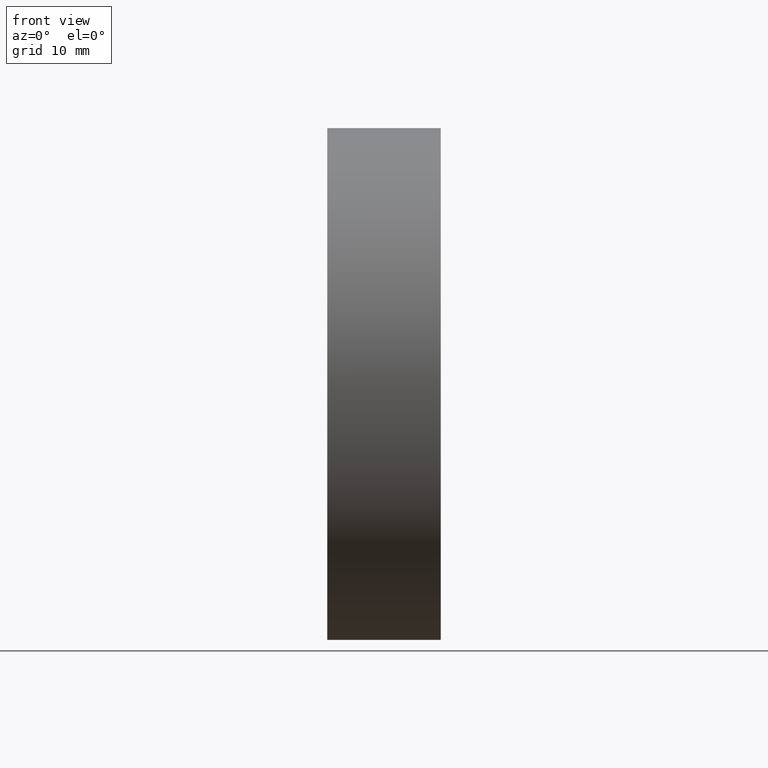
[diagram: clean part render]
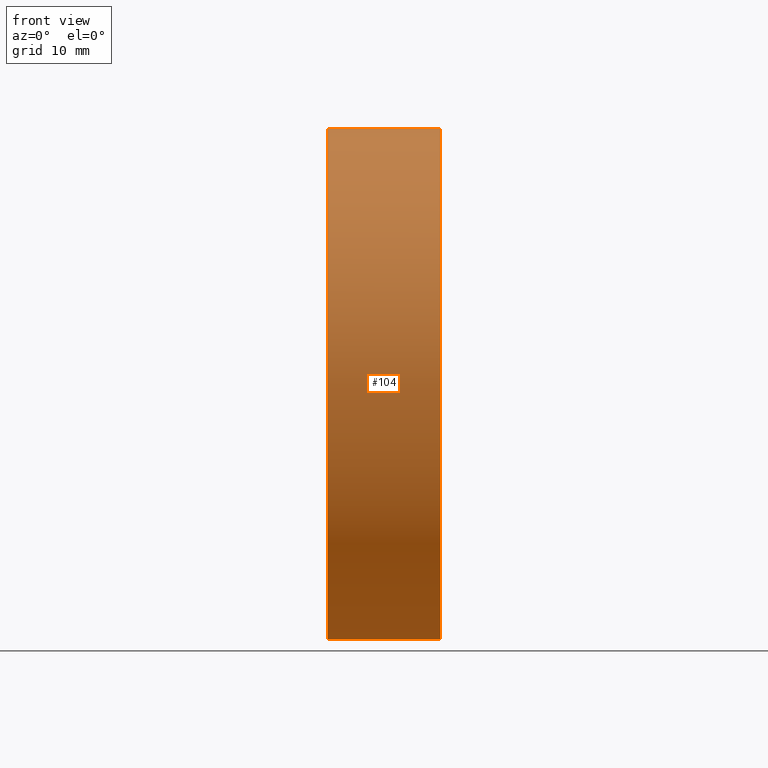
[diagram: same view with one face highlighted and labeled with its STEP entity id]
A machine part, front view. The second image highlights one B-rep face of the part: STEP entity #104.
In plain terms, the highlighted cylindrical surface (partial cylindrical patch) has radius 25 mm, axis along (-1, -0, -0).
Its self-contained STEP definition (entity closure, byte-faithful):
#2 = EDGE_CURVE ( 'NONE', #53, #137, #60, .T. ) ;
#3 = DIRECTION ( 'NONE',  ( 0.0000000000000000000, 0.0000000000000000000, 1.000000000000000000 ) ) ;
#5 = VERTEX_POINT ( 'NONE', #29 ) ;
#12 = ORIENTED_EDGE ( 'NONE', *, *, #93, .T. ) ;
#18 = DIRECTION ( 'NONE',  ( -1.000000000000000000, -0.0000000000000000000, -0.0000000000000000000 ) ) ;
#20 = DIRECTION ( 'NONE',  ( -1.000000000000000000, -0.0000000000000000000, -0.0000000000000000000 ) ) ;
#22 = DIRECTION ( 'NONE',  ( -1.000000000000000000, -0.0000000000000000000, -0.0000000000000000000 ) ) ;
#29 = CARTESIAN_POINT ( 'NONE',  ( 241.2833154481886300, 138.7560422467448700, -24.99999999999999300 ) ) ;
#33 = LINE ( 'NONE', #80, #158 ) ;
#41 = VECTOR ( 'NONE', #18, 1000.000000000000000 ) ;
#44 = ORIENTED_EDGE ( 'NONE', *, *, #90, .F. ) ;
#45 = DIRECTION ( 'NONE',  ( -1.000000000000000000, -0.0000000000000000000, -0.0000000000000000000 ) ) ;
#46 = DIRECTION ( 'NONE',  ( 0.0000000000000000000, 0.0000000000000000000, 1.000000000000000000 ) ) ;
#53 = VERTEX_POINT ( 'NONE', #110 ) ;
#54 = CARTESIAN_POINT ( 'NONE',  ( 230.1853110698390300, 138.7560422467448700, 0.0000000000000000000 ) ) ;
#60 = CIRCLE ( 'NONE', #161, 24.99999999999999300 ) ;
#63 = CYLINDRICAL_SURFACE ( 'NONE', #109, 24.99999999999999300 ) ;
#65 = EDGE_CURVE ( 'NONE', #5, #89, #135, .T. ) ;
#67 = CARTESIAN_POINT ( 'NONE',  ( 217.9702860043302100, 138.7560422467448700, 0.0000000000000000000 ) ) ;
#79 = CARTESIAN_POINT ( 'NONE',  ( 241.2833154481886300, 138.7560422467448700, 24.99999999999999300 ) ) ;
#80 = CARTESIAN_POINT ( 'NONE',  ( 217.9702860043302100, 138.7560422467448700, -24.99999999999999300 ) ) ;
#81 = DIRECTION ( 'NONE',  ( 0.0000000000000000000, 0.0000000000000000000, 1.000000000000000000 ) ) ;
#83 = EDGE_LOOP ( 'NONE', ( #44, #145, #12, #95 ) ) ;
#89 = VERTEX_POINT ( 'NONE', #79 ) ;
#90 = EDGE_CURVE ( 'NONE', #5, #53, #33, .T. ) ;
#93 = EDGE_CURVE ( 'NONE', #89, #137, #103, .T. ) ;
#95 = ORIENTED_EDGE ( 'NONE', *, *, #2, .F. ) ;
#96 = CARTESIAN_POINT ( 'NONE',  ( 217.9702860043302100, 138.7560422467448700, 24.99999999999999300 ) ) ;
#103 = LINE ( 'NONE', #96, #41 ) ;
#104 = ADVANCED_FACE ( 'NONE', ( #132 ), #63, .T. ) ;
#109 = AXIS2_PLACEMENT_3D ( 'NONE', #67, #22, #46 ) ;
#110 = CARTESIAN_POINT ( 'NONE',  ( 230.1853110698390300, 138.7560422467448700, -24.99999999999999300 ) ) ;
#114 = AXIS2_PLACEMENT_3D ( 'NONE', #156, #45, #81 ) ;
#132 = FACE_OUTER_BOUND ( 'NONE', #83, .T. ) ;
#135 = CIRCLE ( 'NONE', #114, 24.99999999999999300 ) ;
#137 = VERTEX_POINT ( 'NONE', #143 ) ;
#143 = CARTESIAN_POINT ( 'NONE',  ( 230.1853110698390300, 138.7560422467448700, 24.99999999999999300 ) ) ;
#145 = ORIENTED_EDGE ( 'NONE', *, *, #65, .T. ) ;
#153 = DIRECTION ( 'NONE',  ( -1.000000000000000000, -0.0000000000000000000, -0.0000000000000000000 ) ) ;
#156 = CARTESIAN_POINT ( 'NONE',  ( 241.2833154481886300, 138.7560422467448700, 0.0000000000000000000 ) ) ;
#158 = VECTOR ( 'NONE', #20, 1000.000000000000000 ) ;
#161 = AXIS2_PLACEMENT_3D ( 'NONE', #54, #153, #3 ) ;